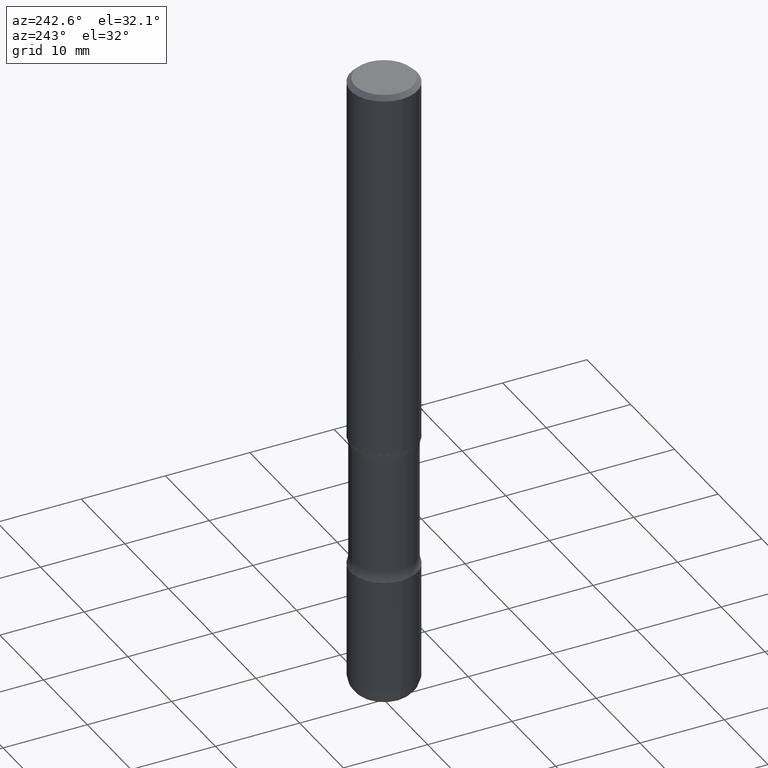
[diagram: clean part render]
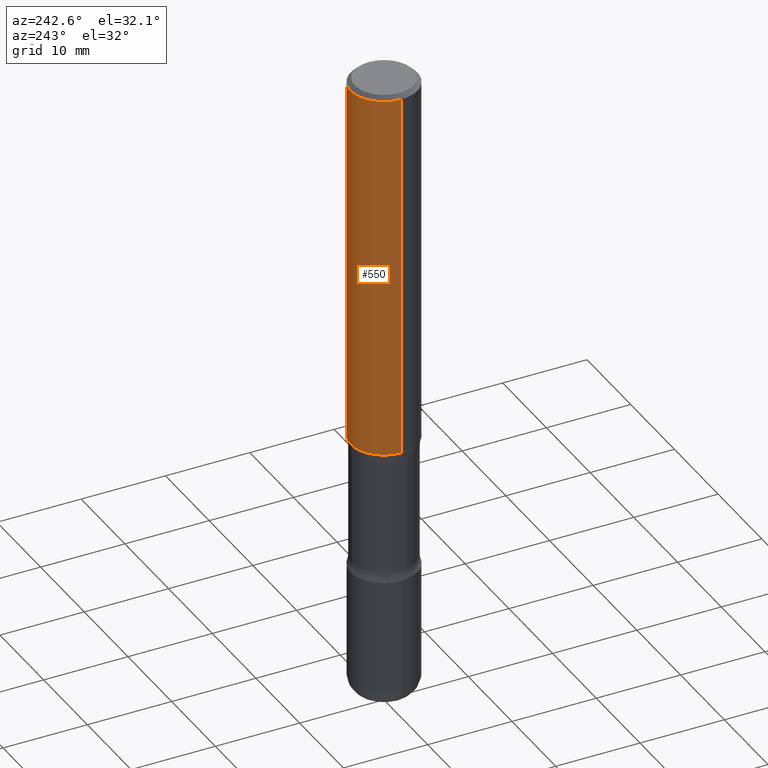
[diagram: same view with one face highlighted and labeled with its STEP entity id]
A machine part, auxiliary view. The second image highlights one B-rep face of the part: STEP entity #550.
In plain terms, the highlighted cylindrical surface (partial cylindrical patch) has radius 3.9687 mm, axis along (-0, 0, 1).
Its self-contained STEP definition (entity closure, byte-faithful):
#9 = CIRCLE ( 'NONE', #58, 0.1562500000000000833 ) ;
#11 = VERTEX_POINT ( 'NONE', #51 ) ;
#25 = CARTESIAN_POINT ( 'NONE',  ( 0.000000000000000000, 0.000000000000000000, 0.000000000000000000 ) ) ;
#51 = CARTESIAN_POINT ( 'NONE',  ( -0.1562500000000000833, -1.979737960251025472E-15, -1.750000000000000444 ) ) ;
#58 = AXIS2_PLACEMENT_3D ( 'NONE', #153, #114, #242 ) ;
#65 = LINE ( 'NONE', #331, #544 ) ;
#67 = DIRECTION ( 'NONE',  ( -2.445468806185136597E-29, 3.491481338843145583E-15, 1.000000000000000000 ) ) ;
#98 = EDGE_CURVE ( 'NONE', #209, #464, #185, .T. ) ;
#104 = DIRECTION ( 'NONE',  ( -2.445468806185136597E-29, 3.491481338843145583E-15, 1.000000000000000000 ) ) ;
#105 = FACE_OUTER_BOUND ( 'NONE', #372, .T. ) ;
#114 = DIRECTION ( 'NONE',  ( -2.445468806185136597E-29, 3.491481338843145583E-15, 1.000000000000000000 ) ) ;
#153 = CARTESIAN_POINT ( 'NONE',  ( 4.279570410823989605E-29, -6.110092342975506249E-15, -1.750000000000000444 ) ) ;
#185 = CIRCLE ( 'NONE', #349, 0.1562499999999998612 ) ;
#192 = ORIENTED_EDGE ( 'NONE', *, *, #494, .F. ) ;
#209 = VERTEX_POINT ( 'NONE', #397 ) ;
#215 = ORIENTED_EDGE ( 'NONE', *, *, #555, .T. ) ;
#242 = DIRECTION ( 'NONE',  ( 1.000000000000000000, -6.982962677686265133E-15, 0.000000000000000000 ) ) ;
#243 = CARTESIAN_POINT ( 'NONE',  ( 4.890937612370273159E-31, -6.982962677686291609E-17, -0.02000000000000000042 ) ) ;
#277 = CARTESIAN_POINT ( 'NONE',  ( 0.1562500000000000833, -7.201180261363985422E-15, -1.750000000000000444 ) ) ;
#281 = CYLINDRICAL_SURFACE ( 'NONE', #368, 0.1562499999999999722 ) ;
#289 = DIRECTION ( 'NONE',  ( -2.445468806185136877E-29, 3.491481338843145188E-15, 1.000000000000000000 ) ) ;
#331 = CARTESIAN_POINT ( 'NONE',  ( 0.1562499999999999722, -1.091087918388478976E-15, 7.619026212181148976E-30 ) ) ;
#333 = ORIENTED_EDGE ( 'NONE', *, *, #517, .T. ) ;
#349 = AXIS2_PLACEMENT_3D ( 'NONE', #243, #104, #534 ) ;
#366 = DIRECTION ( 'NONE',  ( 1.000000000000000000, -6.982962677686266711E-15, 4.876176775795936353E-29 ) ) ;
#368 = AXIS2_PLACEMENT_3D ( 'NONE', #25, #67, #366 ) ;
#372 = EDGE_LOOP ( 'NONE', ( #333, #215, #551, #192 ) ) ;
#397 = CARTESIAN_POINT ( 'NONE',  ( 0.1562499999999998612, -1.141782438928663922E-15, -0.02000000000000000042 ) ) ;
#407 = CARTESIAN_POINT ( 'NONE',  ( -0.1562499999999999722, 1.110223024625156343E-15, -7.685836078523288357E-30 ) ) ;
#424 = VECTOR ( 'NONE', #536, 39.37007874015748143 ) ;
#445 = VERTEX_POINT ( 'NONE', #277 ) ;
#464 = VERTEX_POINT ( 'NONE', #540 ) ;
#494 = EDGE_CURVE ( 'NONE', #445, #209, #65, .T. ) ;
#502 = LINE ( 'NONE', #407, #424 ) ;
#517 = EDGE_CURVE ( 'NONE', #445, #11, #9, .T. ) ;
#534 = DIRECTION ( 'NONE',  ( 1.000000000000000000, -6.982962677686266711E-15, 0.000000000000000000 ) ) ;
#536 = DIRECTION ( 'NONE',  ( -2.445468806185136877E-29, 3.491481338843145188E-15, 1.000000000000000000 ) ) ;
#540 = CARTESIAN_POINT ( 'NONE',  ( -0.1562499999999998612, 1.021258291611615284E-15, -0.02000000000000000042 ) ) ;
#544 = VECTOR ( 'NONE', #289, 39.37007874015748143 ) ;
#550 = ADVANCED_FACE ( 'NONE', ( #105 ), #281, .T. ) ;
#551 = ORIENTED_EDGE ( 'NONE', *, *, #98, .F. ) ;
#555 = EDGE_CURVE ( 'NONE', #11, #464, #502, .T. ) ;